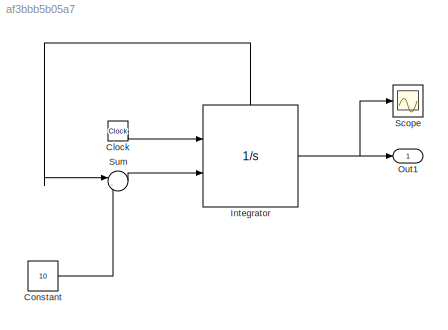
MODEL slx_af3bbb5b05a7
KIND model
CONFIG AbsTol = auto
CONFIG FixedStep = 0.1
CONFIG MaxStep = auto
CONFIG MinStep = auto
CONFIG RelTol = 1e-3
CONFIG SampleTimeConstraint = Unconstrained
CONFIG Solver = ode4
CONFIG SolverMode = Auto
CONFIG SolverName = ode4
CONFIG StartTime = 5
CONFIG StopTime = 10
BLOCK [Clock] Clock
BLOCK [Constant] Constant
  Value = 10
BLOCK [Integrator] Integrator
  ExternalReset = falling
  Ports = [2, 1, 0, 0, 1]
  ShowStatePort = on
BLOCK [Outport] Out1
  IconDisplay = Port number
BLOCK [Scope] Scope
  Ports = [1]
  ScopeSpecificationString = Simulink.scopes.TimeScopeBlockCfg('CurrentConfiguration', extmgr.ConfigurationSet(extmgr.Configuration('Core','General UI',true),extmgr.Configuration('Core','Source UI',true),extmgr.Configuration('Sources','WiredSimulink',true),extmgr.Configuration('Visuals','Time Domain',true,'SerializedDisplays',{struct('MinYLimReal','7.595','MaxYLimReal','9.595','YLabelReal','','MinYLimMag','7.595','MaxYLimMag'...<+1312ch>
BLOCK [Sum] Sum
  IconShape = round
  InputSameDT = off
  Inputs = |-+
  OutDataTypeStr = Inherit: Inherit via internal rule
  Ports = [2, 1]
  SaturateOnIntegerOverflow = off
LINE Clock:1 -> Integrator:1
LINE Constant:1 -> Sum:2
NET Integrator:1 -> Out1:1, Scope:1
LINE Integrator:state -> Sum:1
LINE Sum:1 -> Integrator:2
note: NET lines group one-source signal fan-out (src -> all destinations, sorted); 1:1 wires keep LINE
